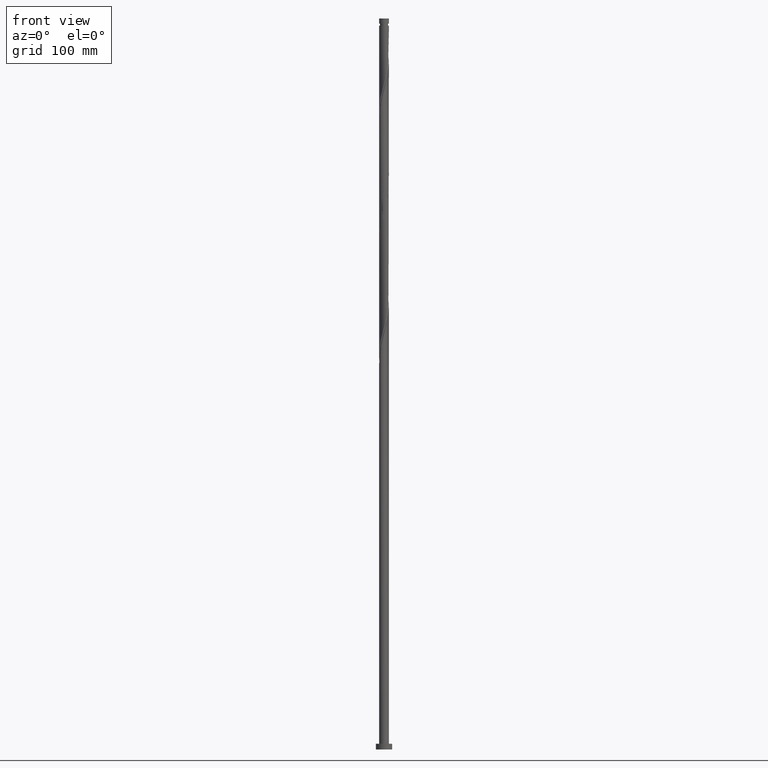
[diagram: clean part render]
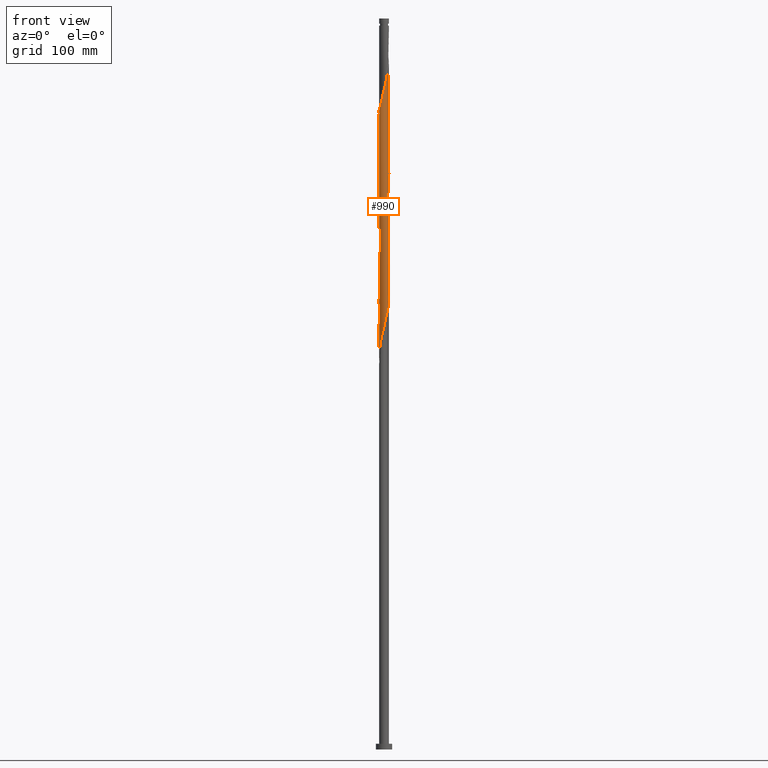
[diagram: same view with one face highlighted and labeled with its STEP entity id]
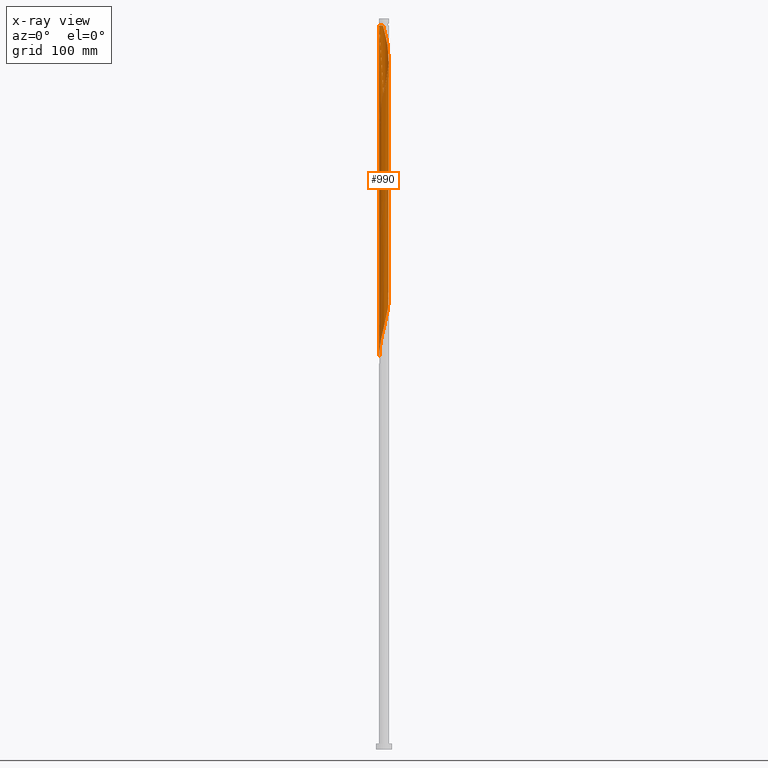
[diagram: x-ray of the same camera — body ghosted, the highlighted face saturated]
A machine part, front view. The second image highlights one B-rep face of the part: STEP entity #990.
The next image is the same camera in x-ray: the body ghosted, the highlighted face saturated — about 0% of this face is hidden behind the body in this view.
In plain terms, the highlighted cylindrical surface (bore or boss wall) has radius 4.25 mm, axis along (-0, -0, -1).
Its self-contained STEP definition (entity closure, byte-faithful):
#9 = CARTESIAN_POINT ( 'NONE',  ( 3.109193260358133148, -2.924125827188293947, 483.3339742208207781 ) ) ;
#15 = DIRECTION ( 'NONE',  ( -0.000000000000000000, -0.000000000000000000, -1.000000000000000000 ) ) ;
#19 = CARTESIAN_POINT ( 'NONE',  ( -3.774556252260445444, 1.953260120547587686, 540.4663271619972420 ) ) ;
#30 = CARTESIAN_POINT ( 'NONE',  ( 1.842920285180764450, 3.849836283006765836, 613.0398565737619947 ) ) ;
#52 = CARTESIAN_POINT ( 'NONE',  ( 3.198532183305974108, -2.826125697105849266, 582.1575036325853034 ) ) ;
#61 = CARTESIAN_POINT ( 'NONE',  ( 0.4597952349425802332, -4.243369289304221859, 569.8045624561151499 ) ) ;
#62 = CARTESIAN_POINT ( 'NONE',  ( 2.518946625869703304, -3.445649790606365670, 480.2457389267033250 ) ) ;
#71 = CARTESIAN_POINT ( 'NONE',  ( -4.250000000000008882, -0.2295849306368547005, 542.6543905604925158 ) ) ;
#75 = VECTOR ( 'NONE', #15, 1000.000000000000000 ) ;
#76 = EDGE_LOOP ( 'NONE', ( #1333, #1323, #1122, #1474, #691, #368, #1271, #1966 ) ) ;
#87 = EDGE_CURVE ( 'NONE', #347, #520, #1700, .T. ) ;
#94 = CARTESIAN_POINT ( 'NONE',  ( -1.473527894850001463, 3.986378750582905361, 423.1133859855266337 ) ) ;
#96 = CARTESIAN_POINT ( 'NONE',  ( -4.003456791465746178, -1.479840634106545760, 344.3633859855266905 ) ) ;
#102 = CARTESIAN_POINT ( 'NONE',  ( 0.8457393215406342479, 4.164999999999998259, 413.8486801031737627 ) ) ;
#104 = CARTESIAN_POINT ( 'NONE',  ( -4.250000000000000000, -5.766354965556833450E-15, 338.4468888778678206 ) ) ;
#115 = CARTESIAN_POINT ( 'NONE',  ( -1.596655744125371701, -3.938678767651845103, 463.2604448090560254 ) ) ;
#118 = CARTESIAN_POINT ( 'NONE',  ( -3.351376653894746926, 2.613575046507991662, 537.3780918678796752 ) ) ;
#125 = CARTESIAN_POINT ( 'NONE',  ( -1.961628080112057138, -3.790726824607907108, 356.7163271619973557 ) ) ;
#126 = CARTESIAN_POINT ( 'NONE',  ( 2.911652021918371691, 3.095929990044777647, 509.5839742208207781 ) ) ;
#135 = CARTESIAN_POINT ( 'NONE',  ( -3.351376653894746926, 2.613575046507991662, 432.3780918678795615 ) ) ;
#151 = CARTESIAN_POINT ( 'NONE',  ( 4.250000000000000000, 5.204748896376250699E-16, 623.8486801031737059 ) ) ;
#190 = CARTESIAN_POINT ( 'NONE',  ( -4.250000000000005329, 2.688973818135294627E-15, 541.7504713284796480 ) ) ;
#199 = CARTESIAN_POINT ( 'NONE',  ( 2.293199970321414760, -3.578230553795814117, 577.5251506914089532 ) ) ;
#201 =( BOUNDED_CURVE ( )  B_SPLINE_CURVE ( 2, ( #1713, #1375, #285, #1238, #494, #428, #19, #266, #118, #1699, #892, #959, #915, #1867, #296, #2033, #1533, #1365, #1088, #2024, #1878, #803, #440, #276, #617, #1550, #126, #1435, #1601, #1894, #586, #597, #762, #904, #1384, #2050, #2040 ),
 .UNSPECIFIED., .F., .T. ) 
 B_SPLINE_CURVE_WITH_KNOTS ( ( 3, 2, 2, 2, 2, 2, 2, 2, 2, 2, 2, 2, 2, 2, 2, 2, 2, 2, 3 ),
 ( 0.4295293573162902168, 0.4338235294117647189, 0.4411764705882352811, 0.4485294117647058987, 0.4558823529411764608, 0.4632352941176470784, 0.4705882352941176405, 0.4779411764705882582, 0.4852941176470588203, 0.4926470588235294379, 0.5000000000000000000, 0.5073529411764705621, 0.5147058823529411242, 0.5220588235294117974, 0.5294117647058823595, 0.5367647058823529216, 0.5441176470588234837, 0.5514705882352941568, 0.5545293573162903833 ),
 .UNSPECIFIED. ) 
 CURVE ( )  GEOMETRIC_REPRESENTATION_ITEM ( )  RATIONAL_B_SPLINE_CURVE ( ( 0.9072066346053317965, 0.9068261157890986635, 0.9090909090909701229, 0.9052128875410010433, 0.9090909090909701229, 0.9052128875410010433, 0.9090909090909701229, 0.9052128875410010433, 0.9090909090909701229, 0.9052128875410010433, 0.9090909090909701229, 0.9052128875410010433, 0.9090909090909701229, 0.9052128875410010433, 0.9090909090909701229, 0.9052128875410010433, 0.9090909090909701229, 0.9052128875410010433, 0.9090909090909701229, 0.9052128875410010433, 0.9090909090909701229, 0.9052128875410010433, 0.9090909090909701229, 0.9052128875410010433, 0.9090909090909701229, 0.9052128875410010433, 0.9090909090909701229, 0.9052128875410010433, 0.9090909090909701229, 0.9052128875410010433, 0.9090909090909701229, 0.9052128875410010433, 0.9090909090909701229, 0.9052128875410010433, 0.9090909090909701229, 0.9074776808428723918, 0.9072066346053315744 ) ) 
 REPRESENTATION_ITEM ( '' )  );
#223 = CARTESIAN_POINT ( 'NONE',  ( -4.182843271983790245, -0.8493625524509891278, 545.0986801031735922 ) ) ;
#230 = CARTESIAN_POINT ( 'NONE',  ( 4.250000000000000000, 5.204748896376250699E-16, 630.0000000000000000 ) ) ;
#233 = CARTESIAN_POINT ( 'NONE',  ( 3.351376653894750035, 2.613575046507995214, 605.3192683384677366 ) ) ;
#262 = CARTESIAN_POINT ( 'NONE',  ( -0.3277507135158968521, 4.255605016125894480, 418.4810330443503972 ) ) ;
#266 = CARTESIAN_POINT ( 'NONE',  ( -3.593560047431360260, 2.303024265827692041, 538.9222095149385723 ) ) ;
#272 = CARTESIAN_POINT ( 'NONE',  ( -2.518946625869703304, 3.445649790606366114, 427.7457389267032113 ) ) ;
#276 = CARTESIAN_POINT ( 'NONE',  ( 1.961628080112057360, 3.790726824607906664, 514.2163271619972420 ) ) ;
#279 = EDGE_CURVE ( 'NONE', #1003, #347, #201, .T. ) ;
#285 = CARTESIAN_POINT ( 'NONE',  ( -4.225267824000977335, 0.4578338295299316796, 546.6427977502326030 ) ) ;
#291 = CARTESIAN_POINT ( 'NONE',  ( -4.267692376018174194, 0.06630510660887339869, 443.1869153972913864 ) ) ;
#294 = CARTESIAN_POINT ( 'NONE',  ( -3.430951256050587705, -2.508201243641523970, 348.9957389267031544 ) ) ;
#296 = CARTESIAN_POINT ( 'NONE',  ( -1.473527894850001463, 3.986378750582905361, 528.1133859855267474 ) ) ;
#327 = DIRECTION ( 'NONE',  ( -0.000000000000000000, -0.000000000000000000, -1.000000000000000000 ) ) ;
#342 = CARTESIAN_POINT ( 'NONE',  ( 4.207210334720096867, 0.7190102801145955569, 393.7751506914090669 ) ) ;
#344 = CARTESIAN_POINT ( 'NONE',  ( -2.180933455525235320, -3.647743036806567307, 558.9957389267032113 ) ) ;
#347 = VERTEX_POINT ( 'NONE', #1079 ) ;
#355 = CARTESIAN_POINT ( 'NONE',  ( -3.593560047431365589, -2.303024265827692929, 551.2751506914092943 ) ) ;
#365 = EDGE_CURVE ( 'NONE', #1428, #1292, #1497, .T. ) ;
#368 = ORIENTED_EDGE ( 'NONE', *, *, #1492, .F. ) ;
#378 = CARTESIAN_POINT ( 'NONE',  ( 3.663370328795211073, -2.190276790177207555, 585.2457389267033250 ) ) ;
#386 = CARTESIAN_POINT ( 'NONE',  ( 4.003456791465749731, -1.479840634106548203, 588.3339742208208918 ) ) ;
#397 = CARTESIAN_POINT ( 'NONE',  ( 4.250000000000000888, -0.2295849306368731302, 495.0429696458551234 ) ) ;
#408 = AXIS2_PLACEMENT_3D ( 'NONE', #1074, #1903, #1108 ) ;
#409 = CARTESIAN_POINT ( 'NONE',  ( 1.842920285180760676, -3.849836283006762283, 372.1575036325855876 ) ) ;
#424 = CARTESIAN_POINT ( 'NONE',  ( -1.842920285180761564, 3.849836283006762283, 424.6575036325855876 ) ) ;
#428 = CARTESIAN_POINT ( 'NONE',  ( -3.955552457089534180, 1.603495975267484663, 542.0104448090561391 ) ) ;
#436 = CARTESIAN_POINT ( 'NONE',  ( -3.430951256050587705, -2.508201243641523970, 453.9957389267031544 ) ) ;
#440 = CARTESIAN_POINT ( 'NONE',  ( 1.596655744125370147, 3.938678767651846879, 515.7604448090560254 ) ) ;
#446 = CARTESIAN_POINT ( 'NONE',  ( -4.207210334720096867, -0.7190102801145966671, 341.2751506914091237 ) ) ;
#453 = CARTESIAN_POINT ( 'NONE',  ( -4.237451355369134198, -0.3263525867528617175, 444.7310330443502266 ) ) ;
#472 = CARTESIAN_POINT ( 'NONE',  ( -4.249999999999936051, 0.000000000000000000, 623.8486801031737059 ) ) ;
#483 = CYLINDRICAL_SURFACE ( 'NONE', #1773, 4.250000000000000000 ) ;
#487 = CARTESIAN_POINT ( 'NONE',  ( 3.955552457089534624, -1.603495975267483109, 489.5104448090561959 ) ) ;
#494 = CARTESIAN_POINT ( 'NONE',  ( -4.069197864536656439, 1.226429263859236451, 543.5545624561148088 ) ) ;
#506 = CARTESIAN_POINT ( 'NONE',  ( 3.774556252260445000, -1.953260120547589240, 382.9663271619973557 ) ) ;
#515 = CARTESIAN_POINT ( 'NONE',  ( 3.593560047431360260, -2.303024265827692041, 381.4222095149385154 ) ) ;
#517 = CARTESIAN_POINT ( 'NONE',  ( -0.3277507135158987950, -4.255605016125899809, 566.7163271619972420 ) ) ;
#520 = VERTEX_POINT ( 'NONE', #738 ) ;
#527 = CARTESIAN_POINT ( 'NONE',  ( -3.774556252260449885, -1.953260120547590128, 549.7310330443501698 ) ) ;
#534 = CARTESIAN_POINT ( 'NONE',  ( -4.250000000000005329, 2.688973818135294627E-15, 541.7504713284796480 ) ) ;
#536 = CARTESIAN_POINT ( 'NONE',  ( -2.814069943113922445, -3.184887808897333361, 555.9075036325854171 ) ) ;
#537 = CARTESIAN_POINT ( 'NONE',  ( -0.8457393215406335818, -4.164999999999998259, 466.3486801031736491 ) ) ;
#545 = CARTESIAN_POINT ( 'NONE',  ( 4.182843271983784028, -0.8493625524509894609, 387.5986801031738764 ) ) ;
#558 = CARTESIAN_POINT ( 'NONE',  ( 4.225267824000977335, -0.4578338295299330674, 494.1427977502324893 ) ) ;
#562 = CARTESIAN_POINT ( 'NONE',  ( 0.3277507135158968521, -4.255605016125894480, 365.9810330443502835 ) ) ;
#570 = CARTESIAN_POINT ( 'NONE',  ( -4.182843271983784028, 0.8493625524509889058, 440.0986801031738196 ) ) ;
#573 = CARTESIAN_POINT ( 'NONE',  ( -4.250000000000000888, -0.1634175485226464497, 339.0902946299275413 ) ) ;
#582 = CARTESIAN_POINT ( 'NONE',  ( 1.596655744125370147, 3.938678767651846879, 410.7604448090560822 ) ) ;
#586 = CARTESIAN_POINT ( 'NONE',  ( 3.833413560130475961, 1.835058712141874215, 503.4075036325854740 ) ) ;
#593 = CARTESIAN_POINT ( 'NONE',  ( -2.293199970321412984, -3.578230553795810565, 460.1722095149382881 ) ) ;
#595 = CARTESIAN_POINT ( 'NONE',  ( 0.7159431090175706336, -4.189263117142470350, 367.5251506914090669 ) ) ;
#597 = CARTESIAN_POINT ( 'NONE',  ( 4.003456791465746178, 1.479840634106545316, 501.8633859855268042 ) ) ;
#613 = CARTESIAN_POINT ( 'NONE',  ( -3.198532183305970999, -2.826125697105843937, 455.5398565737619947 ) ) ;
#617 = CARTESIAN_POINT ( 'NONE',  ( 2.293199970321412984, 3.578230553795810120, 512.6722095149384586 ) ) ;
#653 = CARTESIAN_POINT ( 'NONE',  ( -4.250000000000000000, 0.000000000000000000, 630.0000000000000000 ) ) ;
#666 = CARTESIAN_POINT ( 'NONE',  ( 3.663370328795205744, 2.190276790177206223, 399.9516212796443142 ) ) ;
#668 = CARTESIAN_POINT ( 'NONE',  ( -0.06602226071334184321, 4.249487152715058613, 620.7604448090561391 ) ) ;
#680 = CARTESIAN_POINT ( 'NONE',  ( 4.105333563092925075, -1.099425457110571713, 589.8780918678795615 ) ) ;
#688 = CARTESIAN_POINT ( 'NONE',  ( 4.069197864536657328, -1.226429263859236451, 386.0545624561148657 ) ) ;
#690 = CARTESIAN_POINT ( 'NONE',  ( 2.814069943113922889, 3.184887808897333361, 608.4075036325855308 ) ) ;
#691 = ORIENTED_EDGE ( 'NONE', *, *, #87, .F. ) ;
#700 = CARTESIAN_POINT ( 'NONE',  ( 2.911652021918373912, -3.095929990044782976, 580.6133859855265200 ) ) ;
#701 = CARTESIAN_POINT ( 'NONE',  ( -0.4597952349425791785, -4.243369289304214753, 467.8927977502325462 ) ) ;
#711 = CARTESIAN_POINT ( 'NONE',  ( -3.351376653894750923, -2.613575046507994770, 552.8192683384678503 ) ) ;
#730 = CARTESIAN_POINT ( 'NONE',  ( -1.231683408138687152, -4.086630710695784430, 464.8045624561150362 ) ) ;
#738 = CARTESIAN_POINT ( 'NONE',  ( -4.250000000000000000, -5.766354965556833450E-15, 338.4468888778678206 ) ) ;
#740 = CARTESIAN_POINT ( 'NONE',  ( -0.7159431090175697454, 4.189263117142471238, 420.0251506914090101 ) ) ;
#751 = CARTESIAN_POINT ( 'NONE',  ( 2.624771860530770162, 3.365734282983714465, 406.1280918678796752 ) ) ;
#760 = CARTESIAN_POINT ( 'NONE',  ( -3.663370328795206188, -2.190276790177205335, 452.4516212796443710 ) ) ;
#762 = CARTESIAN_POINT ( 'NONE',  ( 4.105333563092918858, 1.099425457110571935, 500.3192683384678503 ) ) ;
#766 = CARTESIAN_POINT ( 'NONE',  ( -4.250000000000000000, 0.000000000000000000, 630.0000000000000000 ) ) ;
#767 = CARTESIAN_POINT ( 'NONE',  ( -3.593560047431360260, 2.303024265827692041, 433.9222095149384586 ) ) ;
#793 = FACE_OUTER_BOUND ( 'NONE', #76, .T. ) ;
#803 = CARTESIAN_POINT ( 'NONE',  ( 1.231683408138687374, 4.086630710695784430, 517.3045624561150362 ) ) ;
#814 = CARTESIAN_POINT ( 'NONE',  ( -2.518946625869706413, -3.445649790606370555, 557.4516212796442005 ) ) ;
#827 = CARTESIAN_POINT ( 'NONE',  ( 4.182843271983790245, 0.8493625524509884617, 597.5986801031735922 ) ) ;
#835 = CARTESIAN_POINT ( 'NONE',  ( -0.8457393215405792919, 4.164999999999942304, 623.8486801031734785 ) ) ;
#837 = CARTESIAN_POINT ( 'NONE',  ( 2.518946625869704636, 3.445649790606371443, 609.9516212796440868 ) ) ;
#838 = CARTESIAN_POINT ( 'NONE',  ( 0.7159431090175706336, -4.189263117142470350, 472.5251506914090669 ) ) ;
#848 = CARTESIAN_POINT ( 'NONE',  ( 4.069197864536661768, 1.226429263859235785, 599.1427977502324893 ) ) ;
#849 = CARTESIAN_POINT ( 'NONE',  ( 4.069197864536657328, -1.226429263859236451, 491.0545624561149225 ) ) ;
#858 = CARTESIAN_POINT ( 'NONE',  ( 3.109193260358138922, 2.924125827188296167, 606.8633859855267474 ) ) ;
#863 = CARTESIAN_POINT ( 'NONE',  ( 2.180933455525231324, -3.647743036806563754, 373.7016212796443710 ) ) ;
#881 = CARTESIAN_POINT ( 'NONE',  ( -3.833413560130475073, -1.835058712141874437, 345.9075036325855308 ) ) ;
#888 = CARTESIAN_POINT ( 'NONE',  ( -4.207210334720096867, -0.7190102801145966671, 446.2751506914090101 ) ) ;
#891 = CARTESIAN_POINT ( 'NONE',  ( -2.624771860530771495, -3.365734282983714021, 353.6280918678796183 ) ) ;
#892 = CARTESIAN_POINT ( 'NONE',  ( -2.814069943113918004, 3.184887808897328920, 534.2898565737617673 ) ) ;
#904 = CARTESIAN_POINT ( 'NONE',  ( 4.207210334720096867, 0.7190102801145955569, 498.7751506914090669 ) ) ;
#911 = CARTESIAN_POINT ( 'NONE',  ( -3.774556252260445444, 1.953260120547587686, 435.4663271619973557 ) ) ;
#915 = CARTESIAN_POINT ( 'NONE',  ( -2.180933455525231324, 3.647743036806563754, 531.2016212796442005 ) ) ;
#920 = CARTESIAN_POINT ( 'NONE',  ( -4.225267824000977335, 0.4578338295299316796, 441.6427977502324893 ) ) ;
#950 = CARTESIAN_POINT ( 'NONE',  ( 3.430951256050587705, 2.508201243641525746, 401.4957389267031544 ) ) ;
#959 = CARTESIAN_POINT ( 'NONE',  ( -2.518946625869703304, 3.445649790606366114, 532.7457389267032113 ) ) ;
#966 = EDGE_CURVE ( 'NONE', #984, #1292, #1502, .T. ) ;
#971 = CARTESIAN_POINT ( 'NONE',  ( 4.225267824000982664, 0.4578338295299315686, 596.0545624561149225 ) ) ;
#982 = CARTESIAN_POINT ( 'NONE',  ( 3.430951256050591702, -2.508201243641528411, 583.7016212796442005 ) ) ;
#984 = VERTEX_POINT ( 'NONE', #472 ) ;
#990 = ADVANCED_FACE ( 'NONE', ( #793 ), #483, .T. ) ;
#1000 = CARTESIAN_POINT ( 'NONE',  ( 3.833413560130478182, -1.835058712141878434, 586.7898565737616536 ) ) ;
#1002 = CARTESIAN_POINT ( 'NONE',  ( 2.518946625869703304, -3.445649790606365670, 375.2457389267032681 ) ) ;
#1003 = VERTEX_POINT ( 'NONE', #1722 ) ;
#1009 = DIRECTION ( 'NONE',  ( -0.000000000000000000, -0.000000000000000000, -1.000000000000000000 ) ) ;
#1011 = CARTESIAN_POINT ( 'NONE',  ( -1.842920285180764450, -3.849836283006766724, 560.5398565737618810 ) ) ;
#1034 = CARTESIAN_POINT ( 'NONE',  ( 1.842920285180760676, -3.849836283006762283, 477.1575036325855308 ) ) ;
#1036 = CARTESIAN_POINT ( 'NONE',  ( -0.4597952349425791785, -4.243369289304214753, 362.8927977502325462 ) ) ;
#1043 = CARTESIAN_POINT ( 'NONE',  ( -1.104135504519242694, 4.122921218159047996, 421.5692683384679071 ) ) ;
#1045 = CARTESIAN_POINT ( 'NONE',  ( -1.231683408138687152, -4.086630710695784430, 359.8045624561149225 ) ) ;
#1052 = CARTESIAN_POINT ( 'NONE',  ( 2.293199970321412984, 3.578230553795810120, 407.6722095149384586 ) ) ;
#1066 = CARTESIAN_POINT ( 'NONE',  ( -4.105333563092919746, -1.099425457110570159, 447.8192683384677935 ) ) ;
#1070 = EDGE_CURVE ( 'NONE', #984, #1003, #1566, .T. ) ;
#1074 = CARTESIAN_POINT ( 'NONE',  ( 0.000000000000000000, 0.000000000000000000, 623.8486801031737059 ) ) ;
#1075 = CARTESIAN_POINT ( 'NONE',  ( -3.833413560130475073, -1.835058712141874437, 450.9075036325854171 ) ) ;
#1079 = CARTESIAN_POINT ( 'NONE',  ( 4.250000000000000000, 5.616967531215983223E-15, 495.9468888778678775 ) ) ;
#1083 = CARTESIAN_POINT ( 'NONE',  ( 0.000000000000000000, 0.000000000000000000, 630.0000000000000000 ) ) ;
#1088 = CARTESIAN_POINT ( 'NONE',  ( 0.06602226071334113544, 4.249487152715055061, 521.9369153972913864 ) ) ;
#1108 = DIRECTION ( 'NONE',  ( -1.000000000000000000, 0.000000000000000000, 0.000000000000000000 ) ) ;
#1118 = CARTESIAN_POINT ( 'NONE',  ( 1.473527894850005682, 3.986378750582908026, 614.5839742208207781 ) ) ;
#1122 = ORIENTED_EDGE ( 'NONE', *, *, #365, .F. ) ;
#1131 = CARTESIAN_POINT ( 'NONE',  ( 0.7159431090175716328, 4.189263117142476567, 617.6722095149382312 ) ) ;
#1140 = CARTESIAN_POINT ( 'NONE',  ( 1.231683408138688041, -4.086630710695787982, 572.8927977502327167 ) ) ;
#1142 = CARTESIAN_POINT ( 'NONE',  ( 1.473527894850002129, -3.986378750582904473, 475.6133859855266337 ) ) ;
#1152 = CARTESIAN_POINT ( 'NONE',  ( -1.473527894850003683, -3.986378750582909802, 562.0839742208210055 ) ) ;
#1164 = CARTESIAN_POINT ( 'NONE',  ( 2.180933455525231324, -3.647743036806563754, 478.7016212796442574 ) ) ;
#1173 = CARTESIAN_POINT ( 'NONE',  ( 3.955552457089534624, -1.603495975267483109, 384.5104448090560254 ) ) ;
#1176 = CARTESIAN_POINT ( 'NONE',  ( 3.593560047431360260, -2.303024265827692041, 486.4222095149385154 ) ) ;
#1198 = CARTESIAN_POINT ( 'NONE',  ( 1.104135504519242694, -4.122921218159047996, 369.0692683384677935 ) ) ;
#1235 = DIRECTION ( 'NONE',  ( -0.000000000000000000, -0.000000000000000000, -1.000000000000000000 ) ) ;
#1238 = CARTESIAN_POINT ( 'NONE',  ( -4.182843271983784028, 0.8493625524509889058, 545.0986801031735922 ) ) ;
#1261 = VERTEX_POINT ( 'NONE', #151 ) ;
#1271 = ORIENTED_EDGE ( 'NONE', *, *, #1492, .T. ) ;
#1289 = CARTESIAN_POINT ( 'NONE',  ( -0.4597952349425439289, 4.243369289304221859, 622.3045624561149225 ) ) ;
#1292 = VERTEX_POINT ( 'NONE', #835 ) ;
#1299 = CARTESIAN_POINT ( 'NONE',  ( 0.06602226071334056645, -4.249487152715059501, 568.2604448090562528 ) ) ;
#1309 = CARTESIAN_POINT ( 'NONE',  ( 4.182843271983784028, -0.8493625524509894609, 492.5986801031737627 ) ) ;
#1317 = LINE ( 'NONE', #230, #1326 ) ;
#1319 = CARTESIAN_POINT ( 'NONE',  ( -3.955552457089538176, -1.603495975267486218, 548.1869153972916138 ) ) ;
#1323 = ORIENTED_EDGE ( 'NONE', *, *, #966, .T. ) ;
#1326 = VECTOR ( 'NONE', #1009, 1000.000000000000000 ) ;
#1330 = CARTESIAN_POINT ( 'NONE',  ( 4.267692376018174194, -0.06630510660887295460, 390.6869153972914432 ) ) ;
#1332 = CARTESIAN_POINT ( 'NONE',  ( -1.104135504519245581, -4.122921218159054213, 563.6280918678795615 ) ) ;
#1333 = ORIENTED_EDGE ( 'NONE', *, *, #1070, .F. ) ;
#1353 = CARTESIAN_POINT ( 'NONE',  ( -4.237451355369134198, -0.3263525867528617175, 339.7310330443501698 ) ) ;
#1365 = CARTESIAN_POINT ( 'NONE',  ( -0.3277507135158968521, 4.255605016125894480, 523.4810330443502835 ) ) ;
#1370 = CARTESIAN_POINT ( 'NONE',  ( 2.911652021918371691, 3.095929990044777647, 404.5839742208207781 ) ) ;
#1375 = CARTESIAN_POINT ( 'NONE',  ( -4.250000000000000888, 0.2295849306368656362, 547.5429696458550097 ) ) ;
#1384 = CARTESIAN_POINT ( 'NONE',  ( 4.237451355369134198, 0.3263525867528612179, 497.2310330443502266 ) ) ;
#1392 = CARTESIAN_POINT ( 'NONE',  ( -2.624771860530771495, -3.365734282983714021, 458.6280918678795047 ) ) ;
#1417 = CARTESIAN_POINT ( 'NONE',  ( 3.351376653894747371, -2.613575046507990773, 379.8780918678796752 ) ) ;
#1428 = VERTEX_POINT ( 'NONE', #534 ) ;
#1435 = CARTESIAN_POINT ( 'NONE',  ( 3.198532183305971444, 2.826125697105843049, 508.0398565737619379 ) ) ;
#1446 = CARTESIAN_POINT ( 'NONE',  ( 4.003456791465746178, 1.479840634106545316, 396.8633859855266905 ) ) ;
#1448 = CARTESIAN_POINT ( 'NONE',  ( 1.104135504519244249, 4.122921218159054213, 616.1280918678796752 ) ) ;
#1460 = CARTESIAN_POINT ( 'NONE',  ( 3.593560047431365589, 2.303024265827692485, 603.7751506914091806 ) ) ;
#1471 = CARTESIAN_POINT ( 'NONE',  ( 3.955552457089538176, 1.603495975267486884, 600.6869153972916138 ) ) ;
#1474 = ORIENTED_EDGE ( 'NONE', *, *, #1660, .T. ) ;
#1479 = CARTESIAN_POINT ( 'NONE',  ( 4.237451355369134198, 0.3263525867528612179, 392.2310330443502835 ) ) ;
#1482 = CARTESIAN_POINT ( 'NONE',  ( 3.774556252260450329, 1.953260120547589684, 602.2310330443500561 ) ) ;
#1483 = CARTESIAN_POINT ( 'NONE',  ( 3.774556252260445000, -1.953260120547589240, 487.9663271619972988 ) ) ;
#1485 = CARTESIAN_POINT ( 'NONE',  ( 2.814069943113917560, -3.184887808897328920, 376.7898565737619947 ) ) ;
#1492 = EDGE_CURVE ( 'NONE', #1261, #347, #1317, .T. ) ;
#1494 = CARTESIAN_POINT ( 'NONE',  ( 2.180933455525233544, 3.647743036806568195, 611.4957389267029839 ) ) ;
#1497 =( BOUNDED_CURVE ( )  B_SPLINE_CURVE ( 2, ( #190, #71, #1965, #223, #1974, #1319, #527, #355, #711, #1644, #536, #814, #344, #1011, #1152, #1332, #1817, #517, #1299, #61, #1986, #1140, #1803, #1772, #199, #1784, #700, #52, #982, #378, #1000, #386, #680, #1655, #1611, #1621, #971, #827, #848, #1471, #1482, #1460, #233, #858, #690, #837, #1494, #30, #1118, #1448, #1131, #1793, #668, #1289, #1947 ),
 .UNSPECIFIED., .F., .T. ) 
 B_SPLINE_CURVE_WITH_KNOTS ( ( 3, 2, 2, 2, 2, 2, 2, 2, 2, 2, 2, 2, 2, 2, 2, 2, 2, 2, 2, 2, 2, 2, 2, 2, 2, 2, 2, 3 ),
 ( 0.5545293573162900502, 0.5588235294117647189, 0.5661764705882352811, 0.5735294117647057321, 0.5808823529411762943, 0.5882352941176469674, 0.5955882352941175295, 0.6029411764705880916, 0.6102941176470586537, 0.6176470588235292158, 0.6249999999999997780, 0.6323529411764703401, 0.6397058823529409022, 0.6470588235294113533, 0.6544117647058820264, 0.6617647058823525885, 0.6691176470588231506, 0.6764705882352937127, 0.6838235294117642749, 0.6911764705882348370, 0.6985294117647053991, 0.7058823529411759612, 0.7132352941176465233, 0.7205882352941170854, 0.7279411764705876475, 0.7352941176470582096, 0.7426470588235287718, 0.7499999999999993339 ),
 .UNSPECIFIED. ) 
 CURVE ( )  GEOMETRIC_REPRESENTATION_ITEM ( )  RATIONAL_B_SPLINE_CURVE ( ( 0.9072066346053371255, 0.9068261157891037705, 0.9090909090909755630, 0.9052128875410064834, 0.9090909090909755630, 0.9052128875410064834, 0.9090909090909755630, 0.9052128875410064834, 0.9090909090909755630, 0.9052128875410064834, 0.9090909090909755630, 0.9052128875410064834, 0.9090909090909755630, 0.9052128875410064834, 0.9090909090909755630, 0.9052128875410064834, 0.9090909090909755630, 0.9052128875410064834, 0.9090909090909755630, 0.9052128875410064834, 0.9090909090909755630, 0.9052128875410064834, 0.9090909090909755630, 0.9052128875410064834, 0.9090909090909755630, 0.9052128875410064834, 0.9090909090909755630, 0.9052128875410064834, 0.9090909090909755630, 0.9052128875410064834, 0.9090909090909755630, 0.9052128875410064834, 0.9090909090909755630, 0.9052128875410064834, 0.9090909090909755630, 0.9052128875410064834, 0.9090909090909755630, 0.9052128875410064834, 0.9090909090909755630, 0.9052128875410064834, 0.9090909090909755630, 0.9052128875410064834, 0.9090909090909755630, 0.9052128875410064834, 0.9090909090909755630, 0.9052128875410064834, 0.9090909090909755630, 0.9052128875410064834, 0.9090909090909755630, 0.9052128875410064834, 0.9090909090909755630, 0.9052128875410064834, 0.9090909090909755630, 0.9052128875410068165, 0.9090909090909752299 ) ) 
 REPRESENTATION_ITEM ( '' )  );
#1502 = CIRCLE ( 'NONE', #408, 4.249999999999936051 ) ;
#1509 = CARTESIAN_POINT ( 'NONE',  ( 4.250000000000000000, 5.616967531215983223E-15, 495.9468888778678775 ) ) ;
#1518 = CARTESIAN_POINT ( 'NONE',  ( -4.069197864536656439, 1.226429263859236451, 438.5545624561149225 ) ) ;
#1530 = CARTESIAN_POINT ( 'NONE',  ( 0.06602226071334113544, 4.249487152715055061, 416.9369153972913296 ) ) ;
#1532 = CARTESIAN_POINT ( 'NONE',  ( -4.105333563092919746, -1.099425457110570159, 342.8192683384677935 ) ) ;
#1533 = CARTESIAN_POINT ( 'NONE',  ( -0.7159431090175697454, 4.189263117142471238, 525.0251506914089532 ) ) ;
#1541 = CARTESIAN_POINT ( 'NONE',  ( -2.293199970321412984, -3.578230553795810565, 355.1722095149384018 ) ) ;
#1550 = CARTESIAN_POINT ( 'NONE',  ( 2.624771860530770162, 3.365734282983714465, 511.1280918678796183 ) ) ;
#1556 = CARTESIAN_POINT ( 'NONE',  ( -3.955552457089534180, 1.603495975267484663, 437.0104448090561959 ) ) ;
#1566 = LINE ( 'NONE', #766, #2043 ) ;
#1601 = CARTESIAN_POINT ( 'NONE',  ( 3.430951256050587705, 2.508201243641525746, 506.4957389267032113 ) ) ;
#1611 = CARTESIAN_POINT ( 'NONE',  ( 4.237451355369140416, -0.3263525867528634383, 592.9663271619970146 ) ) ;
#1621 = CARTESIAN_POINT ( 'NONE',  ( 4.267692376018180411, 0.06630510660887474483, 594.5104448090561391 ) ) ;
#1632 = CARTESIAN_POINT ( 'NONE',  ( 1.104135504519242694, -4.122921218159047996, 474.0692683384679640 ) ) ;
#1644 = CARTESIAN_POINT ( 'NONE',  ( -3.109193260358138922, -2.924125827188296611, 554.3633859855268611 ) ) ;
#1655 = CARTESIAN_POINT ( 'NONE',  ( 4.207210334720102196, -0.7190102801145981104, 591.4222095149384586 ) ) ;
#1660 = EDGE_CURVE ( 'NONE', #1428, #520, #1782, .T. ) ;
#1677 = CARTESIAN_POINT ( 'NONE',  ( -2.180933455525231324, 3.647743036806563754, 426.2016212796443142 ) ) ;
#1680 = CARTESIAN_POINT ( 'NONE',  ( -3.198532183305970999, -2.826125697105843937, 350.5398565737619947 ) ) ;
#1690 = CARTESIAN_POINT ( 'NONE',  ( -1.596655744125371701, -3.938678767651845103, 358.2604448090560254 ) ) ;
#1699 = CARTESIAN_POINT ( 'NONE',  ( -3.109193260358134037, 2.924125827188293059, 535.8339742208208918 ) ) ;
#1700 =( BOUNDED_CURVE ( )  B_SPLINE_CURVE ( 2, ( #1509, #397, #558, #1309, #849, #487, #1483, #1176, #2001, #9, #1841, #62, #1164, #1034, #1142, #1632, #838, #1804, #1818, #701, #537, #730, #115, #1709, #593, #1392, #2012, #613, #436, #760, #1075, #1723, #1066, #888, #453, #291, #920, #570, #1518, #1556, #911, #767, #135, #2047, #1853, #272, #1677, #424, #94, #1043, #740, #262, #1530, #1873, #102, #2021, #582, #1862, #1052, #751, #1370, #2031, #950, #666, #1926, #1446, #2058, #342, #1479, #1330, #1984, #545, #688, #1173, #506, #515, #1417, #1919, #1485, #1002, #863, #409, #2004, #1198, #595, #562, #2014, #1036, #1885, #1045, #1690, #125, #1541, #891, #1855, #1680, #294, #1865, #881, #96, #1532, #446, #1353, #573, #104 ),
 .UNSPECIFIED., .F., .T. ) 
 B_SPLINE_CURVE_WITH_KNOTS ( ( 3, 2, 2, 2, 2, 2, 2, 2, 2, 2, 2, 2, 2, 2, 2, 2, 2, 2, 2, 2, 2, 2, 2, 2, 2, 2, 2, 2, 2, 2, 2, 2, 2, 2, 2, 2, 2, 2, 2, 2, 2, 2, 2, 2, 2, 2, 2, 2, 2, 2, 2, 2, 3 ),
 ( 0.5545293573162903833, 0.5588235294117647189, 0.5661764705882352811, 0.5735294117647058432, 0.5808823529411765163, 0.5882352941176470784, 0.5955882352941176405, 0.6029411764705882026, 0.6102941176470588758, 0.6176470588235294379, 0.6250000000000000000, 0.6323529411764705621, 0.6397058823529411242, 0.6470588235294117974, 0.6544117647058823595, 0.6617647058823529216, 0.6691176470588234837, 0.6764705882352941568, 0.6838235294117647189, 0.6911764705882352811, 0.6985294117647058432, 0.7058823529411765163, 0.7132352941176470784, 0.7205882352941176405, 0.7279411764705882026, 0.7352941176470588758, 0.7426470588235294379, 0.7500000000000000000, 0.7573529411764705621, 0.7647058823529411242, 0.7720588235294117974, 0.7794117647058823595, 0.7867647058823529216, 0.7941176470588234837, 0.8014705882352941568, 0.8088235294117647189, 0.8161764705882352811, 0.8235294117647058432, 0.8308823529411765163, 0.8382352941176470784, 0.8455882352941176405, 0.8529411764705882026, 0.8602941176470588758, 0.8676470588235294379, 0.8750000000000000000, 0.8823529411764705621, 0.8897058823529411242, 0.8970588235294117974, 0.9044117647058823595, 0.9117647058823529216, 0.9191176470588234837, 0.9264705882352941568, 0.9295293573162904943 ),
 .UNSPECIFIED. ) 
 CURVE ( )  GEOMETRIC_REPRESENTATION_ITEM ( )  RATIONAL_B_SPLINE_CURVE ( ( 0.9072066346053315744, 0.9068261157890985524, 0.9090909090909701229, 0.9052128875410010433, 0.9090909090909701229, 0.9052128875410010433, 0.9090909090909701229, 0.9052128875410010433, 0.9090909090909701229, 0.9052128875410010433, 0.9090909090909701229, 0.9052128875410010433, 0.9090909090909701229, 0.9052128875410010433, 0.9090909090909701229, 0.9052128875410010433, 0.9090909090909701229, 0.9052128875410010433, 0.9090909090909701229, 0.9052128875410010433, 0.9090909090909701229, 0.9052128875410010433, 0.9090909090909701229, 0.9052128875410010433, 0.9090909090909701229, 0.9052128875410010433, 0.9090909090909701229, 0.9052128875410010433, 0.9090909090909701229, 0.9052128875410010433, 0.9090909090909701229, 0.9052128875410010433, 0.9090909090909701229, 0.9052128875410010433, 0.9090909090909701229, 0.9052128875410010433, 0.9090909090909701229, 0.9052128875410010433, 0.9090909090909701229, 0.9052128875410010433, 0.9090909090909701229, 0.9052128875410010433, 0.9090909090909701229, 0.9052128875410010433, 0.9090909090909701229, 0.9052128875410010433, 0.9090909090909701229, 0.9052128875410010433, 0.9090909090909701229, 0.9052128875410010433, 0.9090909090909701229, 0.9052128875410010433, 0.9090909090909701229, 0.9052128875410010433, 0.9090909090909701229, 0.9052128875410010433, 0.9090909090909701229, 0.9052128875410010433, 0.9090909090909701229, 0.9052128875410010433, 0.9090909090909701229, 0.9052128875410010433, 0.9090909090909701229, 0.9052128875410010433, 0.9090909090909701229, 0.9052128875410010433, 0.9090909090909701229, 0.9052128875410010433, 0.9090909090909701229, 0.9052128875410010433, 0.9090909090909701229, 0.9052128875410010433, 0.9090909090909701229, 0.9052128875410010433, 0.9090909090909701229, 0.9052128875410010433, 0.9090909090909701229, 0.9052128875410010433, 0.9090909090909701229, 0.9052128875410010433, 0.9090909090909701229, 0.9052128875410010433, 0.9090909090909701229, 0.9052128875410010433, 0.9090909090909701229, 0.9052128875410010433, 0.9090909090909701229, 0.9052128875410010433, 0.9090909090909701229, 0.9052128875410010433, 0.9090909090909701229, 0.9052128875410010433, 0.9090909090909701229, 0.9052128875410010433, 0.9090909090909701229, 0.9052128875410010433, 0.9090909090909701229, 0.9052128875410010433, 0.9090909090909701229, 0.9052128875410010433, 0.9090909090909701229, 0.9052128875410010433, 0.9090909090909701229, 0.9074776808428723918, 0.9072066346053315744 ) ) 
 REPRESENTATION_ITEM ( '' )  );
#1709 = CARTESIAN_POINT ( 'NONE',  ( -1.961628080112057138, -3.790726824607907108, 461.7163271619972988 ) ) ;
#1713 = CARTESIAN_POINT ( 'NONE',  ( -4.250000000000000000, -2.315505232283184441E-15, 548.4468888778678775 ) ) ;
#1722 = CARTESIAN_POINT ( 'NONE',  ( -4.250000000000000000, -2.315505232283184836E-15, 548.4468888778678775 ) ) ;
#1723 = CARTESIAN_POINT ( 'NONE',  ( -4.003456791465746178, -1.479840634106545760, 449.3633859855268042 ) ) ;
#1772 = CARTESIAN_POINT ( 'NONE',  ( 1.961628080112058470, -3.790726824607912882, 575.9810330443501698 ) ) ;
#1773 = AXIS2_PLACEMENT_3D ( 'NONE', #1083, #327, #1925 ) ;
#1782 = LINE ( 'NONE', #653, #75 ) ;
#1784 = CARTESIAN_POINT ( 'NONE',  ( 2.624771860530773271, -3.365734282983718018, 579.0692683384678503 ) ) ;
#1793 = CARTESIAN_POINT ( 'NONE',  ( 0.3277507135158994611, 4.255605016125899809, 619.2163271619974694 ) ) ;
#1803 = CARTESIAN_POINT ( 'NONE',  ( 1.596655744125372367, -3.938678767651850432, 574.4369153972913864 ) ) ;
#1804 = CARTESIAN_POINT ( 'NONE',  ( 0.3277507135158968521, -4.255605016125894480, 470.9810330443503403 ) ) ;
#1817 = CARTESIAN_POINT ( 'NONE',  ( -0.7159431090175712997, -4.189263117142476567, 565.1722095149383449 ) ) ;
#1818 = CARTESIAN_POINT ( 'NONE',  ( -0.06602226071334209301, -4.249487152715054172, 469.4369153972913296 ) ) ;
#1841 = CARTESIAN_POINT ( 'NONE',  ( 2.814069943113917560, -3.184887808897328920, 481.7898565737618242 ) ) ;
#1853 = CARTESIAN_POINT ( 'NONE',  ( -2.814069943113918004, 3.184887808897328920, 429.2898565737618810 ) ) ;
#1855 = CARTESIAN_POINT ( 'NONE',  ( -2.911652021918370359, -3.095929990044778979, 352.0839742208207781 ) ) ;
#1862 = CARTESIAN_POINT ( 'NONE',  ( 1.961628080112057360, 3.790726824607906664, 409.2163271619973557 ) ) ;
#1865 = CARTESIAN_POINT ( 'NONE',  ( -3.663370328795206188, -2.190276790177205335, 347.4516212796443142 ) ) ;
#1867 = CARTESIAN_POINT ( 'NONE',  ( -1.842920285180761564, 3.849836283006762283, 529.6575036325854171 ) ) ;
#1873 = CARTESIAN_POINT ( 'NONE',  ( 0.4597952349425794560, 4.243369289304214753, 415.3927977502326030 ) ) ;
#1878 = CARTESIAN_POINT ( 'NONE',  ( 0.8457393215406342479, 4.164999999999998259, 518.8486801031735922 ) ) ;
#1885 = CARTESIAN_POINT ( 'NONE',  ( -0.8457393215406335818, -4.164999999999998259, 361.3486801031738196 ) ) ;
#1894 = CARTESIAN_POINT ( 'NONE',  ( 3.663370328795205744, 2.190276790177206223, 504.9516212796444279 ) ) ;
#1903 = DIRECTION ( 'NONE',  ( -0.000000000000000000, -0.000000000000000000, -1.000000000000000000 ) ) ;
#1919 = CARTESIAN_POINT ( 'NONE',  ( 3.109193260358133148, -2.924125827188293947, 378.3339742208208349 ) ) ;
#1925 = DIRECTION ( 'NONE',  ( -1.000000000000000000, 0.000000000000000000, 0.000000000000000000 ) ) ;
#1926 = CARTESIAN_POINT ( 'NONE',  ( 3.833413560130475961, 1.835058712141874215, 398.4075036325855308 ) ) ;
#1947 = CARTESIAN_POINT ( 'NONE',  ( -0.8457393215405792919, 4.164999999999942304, 623.8486801031734785 ) ) ;
#1965 = CARTESIAN_POINT ( 'NONE',  ( -4.225267824000982664, -0.4578338295299310134, 543.5545624561149225 ) ) ;
#1966 = ORIENTED_EDGE ( 'NONE', *, *, #279, .F. ) ;
#1974 = CARTESIAN_POINT ( 'NONE',  ( -4.069197864536661768, -1.226429263859236896, 546.6427977502324893 ) ) ;
#1984 = CARTESIAN_POINT ( 'NONE',  ( 4.225267824000977335, -0.4578338295299330674, 389.1427977502326030 ) ) ;
#1986 = CARTESIAN_POINT ( 'NONE',  ( 0.8457393215406331377, -4.165000000000004476, 571.3486801031735922 ) ) ;
#2001 = CARTESIAN_POINT ( 'NONE',  ( 3.351376653894747371, -2.613575046507990773, 484.8780918678796183 ) ) ;
#2004 = CARTESIAN_POINT ( 'NONE',  ( 1.473527894850002129, -3.986378750582904473, 370.6133859855266337 ) ) ;
#2012 = CARTESIAN_POINT ( 'NONE',  ( -2.911652021918370359, -3.095929990044778979, 457.0839742208207781 ) ) ;
#2014 = CARTESIAN_POINT ( 'NONE',  ( -0.06602226071334209301, -4.249487152715054172, 364.4369153972913864 ) ) ;
#2021 = CARTESIAN_POINT ( 'NONE',  ( 1.231683408138687374, 4.086630710695784430, 412.3045624561148657 ) ) ;
#2024 = CARTESIAN_POINT ( 'NONE',  ( 0.4597952349425794560, 4.243369289304214753, 520.3927977502326030 ) ) ;
#2031 = CARTESIAN_POINT ( 'NONE',  ( 3.198532183305971444, 2.826125697105843049, 403.0398565737620515 ) ) ;
#2033 = CARTESIAN_POINT ( 'NONE',  ( -1.104135504519242694, 4.122921218159047996, 526.5692683384678503 ) ) ;
#2040 = CARTESIAN_POINT ( 'NONE',  ( 4.250000000000000000, 5.616967531215983223E-15, 495.9468888778678775 ) ) ;
#2043 = VECTOR ( 'NONE', #1235, 1000.000000000000000 ) ;
#2047 = CARTESIAN_POINT ( 'NONE',  ( -3.109193260358134037, 2.924125827188293059, 430.8339742208208349 ) ) ;
#2050 = CARTESIAN_POINT ( 'NONE',  ( 4.250000000000000000, 0.1634175485226523339, 496.5902946299275982 ) ) ;
#2058 = CARTESIAN_POINT ( 'NONE',  ( 4.105333563092918858, 1.099425457110571935, 395.3192683384678503 ) ) ;